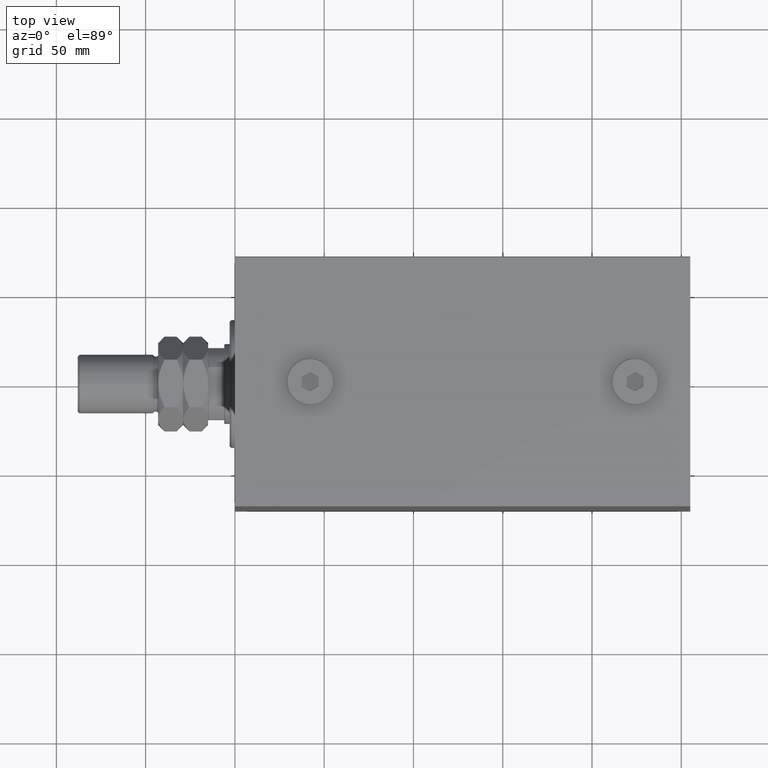
[diagram: clean part render]
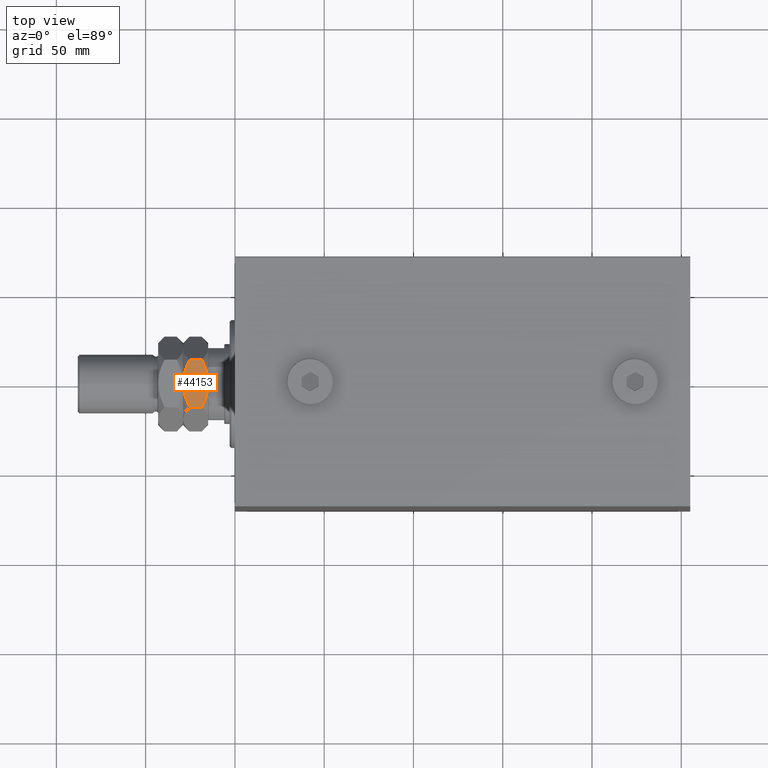
[diagram: same view with one face highlighted and labeled with its STEP entity id]
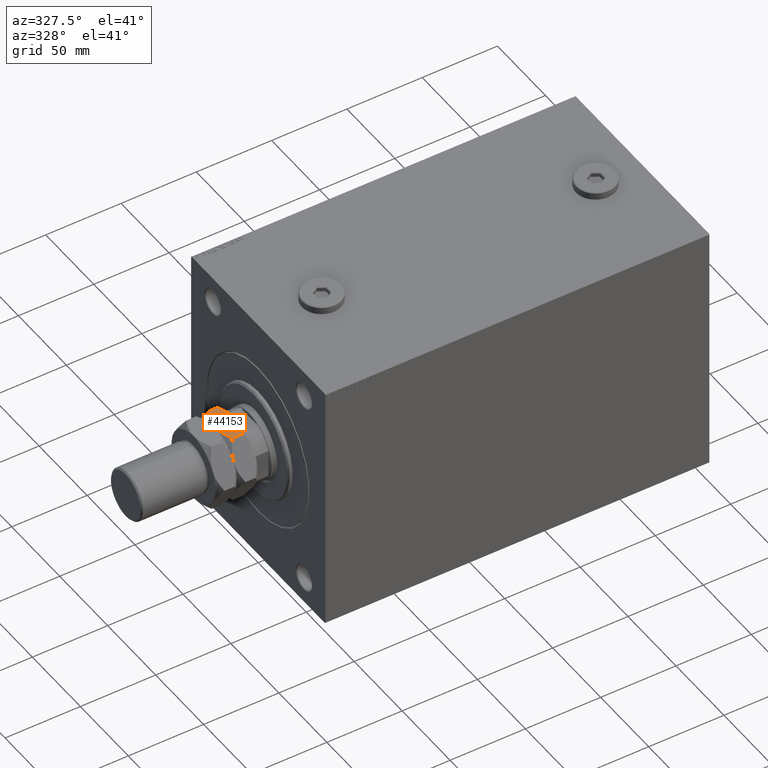
[diagram: same view with one face highlighted and labeled with its STEP entity id]
A machine part, top view. The second image highlights one B-rep face of the part: STEP entity #44153.
A second angle (auxiliary view) of the same face is appended — the face is thin or edge-on in the first view.
In plain terms, the highlighted planar face has unit normal (0, 0, -1).
Its self-contained STEP definition (entity closure, byte-faithful):
#784 = VERTEX_POINT ( 'NONE', #46313 ) ;
#785 = CARTESIAN_POINT ( 'NONE',  ( 23.00000000000000355, -7.383193414690654599, 12.84988593970195225 ) ) ;
#2053 = EDGE_CURVE ( 'NONE', #19365, #6286, #8220, .T. ) ;
#4354 = VERTEX_POINT ( 'NONE', #25545 ) ;
#4374 = CARTESIAN_POINT ( 'NONE',  ( 23.00000000000000000, -13.27905619136139670, 14.00000000000000000 ) ) ;
#4591 = ORIENTED_EDGE ( 'NONE', *, *, #2053, .F. ) ;
#4607 = CARTESIAN_POINT ( 'NONE',  ( 23.00000000000000000, 13.27905619136139137, 3.558112382722770750 ) ) ;
#4942 = CARTESIAN_POINT ( 'NONE',  ( 22.99999999999999289, 9.582397350857380758, 1.911424777500733141 ) ) ;
#5464 = CARTESIAN_POINT ( 'NONE',  ( 23.00000000000000000, 13.27905619136139137, 14.00000000000000000 ) ) ;
#5502 = ORIENTED_EDGE ( 'NONE', *, *, #36344, .F. ) ;
#6286 = VERTEX_POINT ( 'NONE', #27003 ) ;
#6795 = CARTESIAN_POINT ( 'NONE',  ( 23.00000000000000711, 11.19569807237882308, 11.43895738059878120 ) ) ;
#7153 = CARTESIAN_POINT ( 'NONE',  ( 23.00000000000000000, -13.27905619136139670, 14.00000000000000000 ) ) ;
#7518 = EDGE_CURVE ( 'NONE', #19365, #28327, #30200, .T. ) ;
#7716 = CARTESIAN_POINT ( 'NONE',  ( 23.00000000000000355, -7.935615110598578603, 12.67495028750483854 ) ) ;
#8024 = ORIENTED_EDGE ( 'NONE', *, *, #43341, .F. ) ;
#8220 = B_SPLINE_CURVE_WITH_KNOTS ( 'NONE', 3,
 ( #11311, #18493, #25902, #41014, #40535, #7716, #785, #15138, #22325, #33333 ),
 .UNSPECIFIED., .F., .F.,
 ( 4, 2, 2, 2, 4 ),
 ( 0.03459390932742917313, 0.03805705299854612866, 0.03978862483410460643, 0.04152019666966308420, 0.04844648401189700221 ),
 .UNSPECIFIED. ) ;
#8277 = CARTESIAN_POINT ( 'NONE',  ( 23.00000000000000000, 9.034960763048690779, 1.705557518939540884 ) ) ;
#8968 = EDGE_CURVE ( 'NONE', #784, #41927, #12402, .T. ) ;
#9034 = DIRECTION ( 'NONE',  ( -0.000000000000000000, -0.000000000000000000, -1.000000000000000000 ) ) ;
#9037 = EDGE_LOOP ( 'NONE', ( #20261, #15943, #5502, #4591, #37788, #8024 ) ) ;
#9263 = CARTESIAN_POINT ( 'NONE',  ( 22.99999999999999289, 2.327216729774860937, 13.88976928762942542 ) ) ;
#9496 = CARTESIAN_POINT ( 'NONE',  ( 23.00000000000000711, 0.5827685162635629634, 14.00000000000000178 ) ) ;
#11311 = CARTESIAN_POINT ( 'NONE',  ( 23.00000000000000000, -13.27905619136139670, 10.44188761727722969 ) ) ;
#12402 = LINE ( 'NONE', #5464, #40445 ) ;
#13212 = EDGE_CURVE ( 'NONE', #41927, #4354, #15184, .T. ) ;
#13287 = CARTESIAN_POINT ( 'NONE',  ( 23.00000000000000000, 0.000000000000000000, 0.000000000000000000 ) ) ;
#14209 = CARTESIAN_POINT ( 'NONE',  ( 23.00000000000000711, 9.036340143478453157, 12.30832756471083123 ) ) ;
#14332 = FACE_OUTER_BOUND ( 'NONE', #9037, .T. ) ;
#14379 = VECTOR ( 'NONE', #26375, 1000.000000000000000 ) ;
#15138 = CARTESIAN_POINT ( 'NONE',  ( 23.00000000000000000, -4.605953494949545757, 13.64024328841524181 ) ) ;
#15184 = B_SPLINE_CURVE_WITH_KNOTS ( 'NONE', 3,
 ( #40868, #15468, #26464, #4942, #8277, #29823, #26705, #15932, #15230, #29586 ),
 .UNSPECIFIED., .F., .F.,
 ( 4, 2, 2, 2, 4 ),
 ( 0.03459390932742917313, 0.03805705299854612172, 0.03978862483410459949, 0.04152019666966307726, 0.04844648401189699527 ),
 .UNSPECIFIED. ) ;
#15230 = CARTESIAN_POINT ( 'NONE',  ( 23.00000000000000000, 2.335256030405475691, -1.084202172485503818E-16 ) ) ;
#15468 = CARTESIAN_POINT ( 'NONE',  ( 23.00000000000000355, 12.24914829647811132, 3.043158435281133389 ) ) ;
#15932 = CARTESIAN_POINT ( 'NONE',  ( 23.00000000000000355, 4.605953494949539540, 0.3597567115847576380 ) ) ;
#15943 = ORIENTED_EDGE ( 'NONE', *, *, #8968, .F. ) ;
#16439 = CARTESIAN_POINT ( 'NONE',  ( 22.99999999999999645, 0.000000000000000000, 14.00000000000000000 ) ) ;
#16632 = CARTESIAN_POINT ( 'NONE',  ( 23.00000000000000355, -11.19569807237882841, 2.561042619401230347 ) ) ;
#16681 = CARTESIAN_POINT ( 'NONE',  ( 23.00000000000000000, 2.901297070256877220, 13.82457596738015049 ) ) ;
#17574 = CARTESIAN_POINT ( 'NONE',  ( 23.00000000000000000, 13.27905619136139137, 10.44188761727723147 ) ) ;
#18374 = AXIS2_PLACEMENT_3D ( 'NONE', #7153, #39037, #27998 ) ;
#18493 = CARTESIAN_POINT ( 'NONE',  ( 23.00000000000000000, -12.24914829647811487, 10.95684156471887327 ) ) ;
#19365 = VERTEX_POINT ( 'NONE', #24991 ) ;
#20261 = ORIENTED_EDGE ( 'NONE', *, *, #13212, .F. ) ;
#20940 = CARTESIAN_POINT ( 'NONE',  ( 23.00000000000000000, -5.731580876109816813, 0.6796544745458226178 ) ) ;
#21395 = CARTESIAN_POINT ( 'NONE',  ( 23.00000000000000355, 12.24893264259405790, 10.95694939166089732 ) ) ;
#21561 = B_SPLINE_CURVE_WITH_KNOTS ( 'NONE', 3,
 ( #13287, #31714, #27180, #35320, #39167, #45423, #20940, #35555, #27652, #16632, #34835, #42764 ),
 .UNSPECIFIED., .F., .F.,
 ( 4, 2, 2, 2, 2, 4 ),
 ( 0.04844648401189699527, 0.05017495495687852858, 0.05190342590186005495, 0.05536036779182312156, 0.05881730968178618124, 0.06227425157174924786 ),
 .UNSPECIFIED. ) ;
#22325 = CARTESIAN_POINT ( 'NONE',  ( 23.00000000000000355, -2.335256030405480132, 14.00000000000000355 ) ) ;
#24991 = CARTESIAN_POINT ( 'NONE',  ( 23.00000000000000000, -13.27905619136139670, 10.44188761727722969 ) ) ;
#25545 = CARTESIAN_POINT ( 'NONE',  ( 23.00000000000000000, 0.000000000000000000, 0.000000000000000000 ) ) ;
#25902 = CARTESIAN_POINT ( 'NONE',  ( 23.00000000000000355, -11.19894991158976438, 11.43745981042313353 ) ) ;
#26375 = DIRECTION ( 'NONE',  ( -0.000000000000000000, -0.000000000000000000, -1.000000000000000000 ) ) ;
#26464 = CARTESIAN_POINT ( 'NONE',  ( 23.00000000000000355, 11.19894991158976083, 2.562540189576865135 ) ) ;
#26705 = CARTESIAN_POINT ( 'NONE',  ( 23.00000000000000711, 7.383193414690649270, 1.150114060298049745 ) ) ;
#27003 = CARTESIAN_POINT ( 'NONE',  ( 22.99999999999999645, 0.000000000000000000, 14.00000000000000000 ) ) ;
#27180 = CARTESIAN_POINT ( 'NONE',  ( 23.00000000000000000, -1.169461507161065006, 0.02247740987888321648 ) ) ;
#27652 = CARTESIAN_POINT ( 'NONE',  ( 23.00000000000000355, -9.036340143478451381, 1.691672435289179210 ) ) ;
#27998 = DIRECTION ( 'NONE',  ( 0.000000000000000000, 0.000000000000000000, 1.000000000000000000 ) ) ;
#28327 = VERTEX_POINT ( 'NONE', #40220 ) ;
#29586 = CARTESIAN_POINT ( 'NONE',  ( 23.00000000000000000, 0.000000000000000000, 0.000000000000000000 ) ) ;
#29823 = CARTESIAN_POINT ( 'NONE',  ( 23.00000000000000355, 7.935615110598574162, 1.325049712495167231 ) ) ;
#30200 = LINE ( 'NONE', #4374, #14379 ) ;
#31284 = CARTESIAN_POINT ( 'NONE',  ( 23.00000000000000000, 7.944654633855236625, 12.68966158306866987 ) ) ;
#31714 = CARTESIAN_POINT ( 'NONE',  ( 23.00000000000000711, -0.5827685162635674043, 2.710505431213758312E-17 ) ) ;
#32526 = PLANE ( 'NONE',  #18374 ) ;
#33333 = CARTESIAN_POINT ( 'NONE',  ( 22.99999999999999645, 0.000000000000000000, 14.00000000000000000 ) ) ;
#34835 = CARTESIAN_POINT ( 'NONE',  ( 23.00000000000000711, -12.24893264259406855, 3.043050608339112006 ) ) ;
#35320 = CARTESIAN_POINT ( 'NONE',  ( 22.99999999999999289, -2.327216729774864490, 0.1102307123705726921 ) ) ;
#35555 = CARTESIAN_POINT ( 'NONE',  ( 22.99999999999999645, -7.944654633855234849, 1.310338416931336125 ) ) ;
#36344 = EDGE_CURVE ( 'NONE', #6286, #784, #36816, .T. ) ;
#36816 = B_SPLINE_CURVE_WITH_KNOTS ( 'NONE', 3,
 ( #16439, #9496, #39613, #9263, #16681, #46825, #42324, #31284, #14209, #6795, #21395, #17574 ),
 .UNSPECIFIED., .F., .F.,
 ( 4, 2, 2, 2, 2, 4 ),
 ( 0.04844648401189700221, 0.05017495495687852858, 0.05190342590186006189, 0.05536036779182312156, 0.05881730968178618124, 0.06227425157174924786 ),
 .UNSPECIFIED. ) ;
#37788 = ORIENTED_EDGE ( 'NONE', *, *, #7518, .T. ) ;
#39037 = DIRECTION ( 'NONE',  ( -1.000000000000000000, 0.000000000000000000, 0.000000000000000000 ) ) ;
#39167 = CARTESIAN_POINT ( 'NONE',  ( 23.00000000000000000, -2.901297070256888322, 0.1754240326198526490 ) ) ;
#39613 = CARTESIAN_POINT ( 'NONE',  ( 23.00000000000000000, 1.169461507161060787, 13.97752259012112042 ) ) ;
#40220 = CARTESIAN_POINT ( 'NONE',  ( 23.00000000000000000, -13.27905619136139670, 3.558112382722774303 ) ) ;
#40445 = VECTOR ( 'NONE', #9034, 1000.000000000000000 ) ;
#40535 = CARTESIAN_POINT ( 'NONE',  ( 23.00000000000000355, -9.034960763048697885, 12.29444248106046267 ) ) ;
#40868 = CARTESIAN_POINT ( 'NONE',  ( 23.00000000000000000, 13.27905619136139137, 3.558112382722770750 ) ) ;
#41014 = CARTESIAN_POINT ( 'NONE',  ( 23.00000000000000000, -9.582397350857389640, 12.08857522249926753 ) ) ;
#41927 = VERTEX_POINT ( 'NONE', #4607 ) ;
#42324 = CARTESIAN_POINT ( 'NONE',  ( 23.00000000000000355, 5.731580876109815037, 13.32034552545418293 ) ) ;
#42764 = CARTESIAN_POINT ( 'NONE',  ( 23.00000000000000000, -13.27905619136139670, 3.558112382722774303 ) ) ;
#43341 = EDGE_CURVE ( 'NONE', #4354, #28327, #21561, .T. ) ;
#44153 = ADVANCED_FACE ( 'NONE', ( #14332 ), #32526, .F. ) ;
#45423 = CARTESIAN_POINT ( 'NONE',  ( 23.00000000000000355, -4.610166311818710838, 0.4304214863932612212 ) ) ;
#46313 = CARTESIAN_POINT ( 'NONE',  ( 23.00000000000000000, 13.27905619136139137, 10.44188761727723147 ) ) ;
#46825 = CARTESIAN_POINT ( 'NONE',  ( 23.00000000000000355, 4.610166311818702845, 13.56957851360674283 ) ) ;